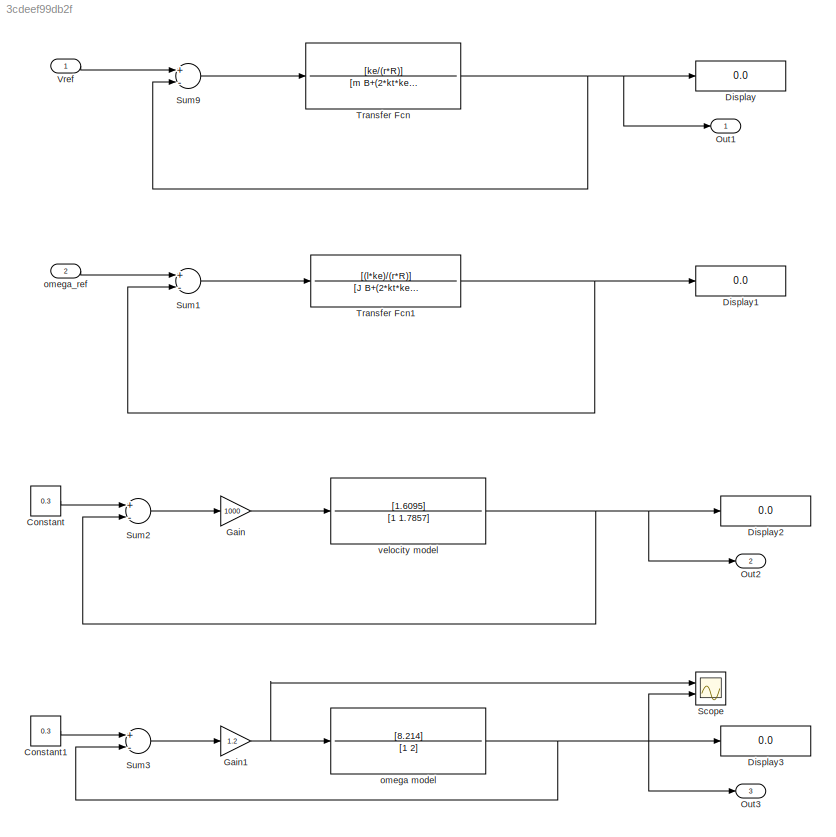
MODEL slx_3cdeef99db2f
KIND model
CONFIG AbsTol = auto
CONFIG FixedStep = auto
CONFIG MaxStep = auto
CONFIG MinStep = auto
CONFIG RelTol = 1e-3
CONFIG SampleTimeConstraint = Unconstrained
CONFIG Solver = VariableStepAuto
CONFIG SolverMode = Auto
CONFIG SolverName = VariableStepAuto
CONFIG StartTime = 0.0
CONFIG StopTime = 10
BLOCK [Constant] Constant
  Value = 0.3
BLOCK [Constant] Constant1
  Value = 0.3
BLOCK [Display] Display
  Decimation = 1
  Ports = [1]
BLOCK [Display] Display1
  Decimation = 1
  Ports = [1]
BLOCK [Display] Display2
  Decimation = 1
  Ports = [1]
BLOCK [Display] Display3
  Decimation = 1
  Ports = [1]
BLOCK [Gain] Gain
  Gain = 1000
  OutDataTypeStr = Inherit: Inherit via internal rule
  ParamDataTypeStr = Inherit: Inherit via internal rule
  SaturateOnIntegerOverflow = off
BLOCK [Gain] Gain1
  Gain = 1.2
  OutDataTypeStr = Inherit: Inherit via internal rule
  ParamDataTypeStr = Inherit: Inherit via internal rule
  SaturateOnIntegerOverflow = off
BLOCK [Outport] Out1
  IconDisplay = Port number
BLOCK [Outport] Out2
  IconDisplay = Port number
  Port = 2
BLOCK [Outport] Out3
  IconDisplay = Port number
  Port = 3
BLOCK [Scope] Scope
  NumInputPorts = 2
  Ports = [2]
  ScopeSpecificationString = Simulink.scopes.TimeScopeBlockCfg('CurrentConfiguration', extmgr.ConfigurationSet(extmgr.Configuration('Core','General UI',true),extmgr.Configuration('Core','Source UI',true),extmgr.Configuration('Sources','WiredSimulink',true),extmgr.Configuration('Visuals','Time Domain',true,'SerializedDisplays',{struct('MinYLimReal','-0.0375','MaxYLimReal','0.3375','YLabelReal','','MinYLimMag','0.00000','MaxYLi...<+1407ch>
BLOCK [Sum] Sum1
  InputSameDT = off
  Inputs = +-
  OutDataTypeStr = Inherit: Inherit via internal rule
  Ports = [2, 1]
  SaturateOnIntegerOverflow = off
BLOCK [Sum] Sum2
  InputSameDT = off
  Inputs = +-
  OutDataTypeStr = Inherit: Inherit via internal rule
  Ports = [2, 1]
  SaturateOnIntegerOverflow = off
BLOCK [Sum] Sum3
  InputSameDT = off
  Inputs = +-
  OutDataTypeStr = Inherit: Inherit via internal rule
  Ports = [2, 1]
  SaturateOnIntegerOverflow = off
BLOCK [Sum] Sum9
  InputSameDT = off
  Inputs = +-
  OutDataTypeStr = Inherit: Inherit via internal rule
  Ports = [2, 1]
  SaturateOnIntegerOverflow = off
BLOCK [TransferFcn] Transfer Fcn
  Denominator = [m B+(2*kt*ke)/(r^2*R)]
  Numerator = [ke/(r*R)]
BLOCK [TransferFcn] Transfer Fcn1
  Denominator = [J B+(2*kt*ke*l^2)/(r^2*R)]
  Numerator = [(l*ke)/(r*R)]
BLOCK [Inport] Vref
  IconDisplay = Port number
BLOCK [TransferFcn] omega model
  Denominator = [1 2]
  Numerator = [8.214]
BLOCK [Inport] omega_ref
  IconDisplay = Port number
  Port = 2
BLOCK [TransferFcn] velocity model
  Denominator = [1 1.7857]
  Numerator = [1.6095]
LINE Constant1:1 -> Sum3:1
LINE Constant:1 -> Sum2:1
NET Gain1:1 -> Scope:1, omega model:1
LINE Gain:1 -> velocity model:1
LINE Sum1:1 -> Transfer Fcn1:1
LINE Sum2:1 -> Gain:1
LINE Sum3:1 -> Gain1:1
LINE Sum9:1 -> Transfer Fcn:1
NET Transfer Fcn1:1 -> Display1:1, Sum1:2
NET Transfer Fcn:1 -> Display:1, Out1:1, Sum9:2
LINE Vref:1 -> Sum9:1
NET omega model:1 -> Display3:1, Out3:1, Scope:2, Sum3:2
LINE omega_ref:1 -> Sum1:1
NET velocity model:1 -> Display2:1, Out2:1, Sum2:2
note: NET lines group one-source signal fan-out (src -> all destinations, sorted); 1:1 wires keep LINE
